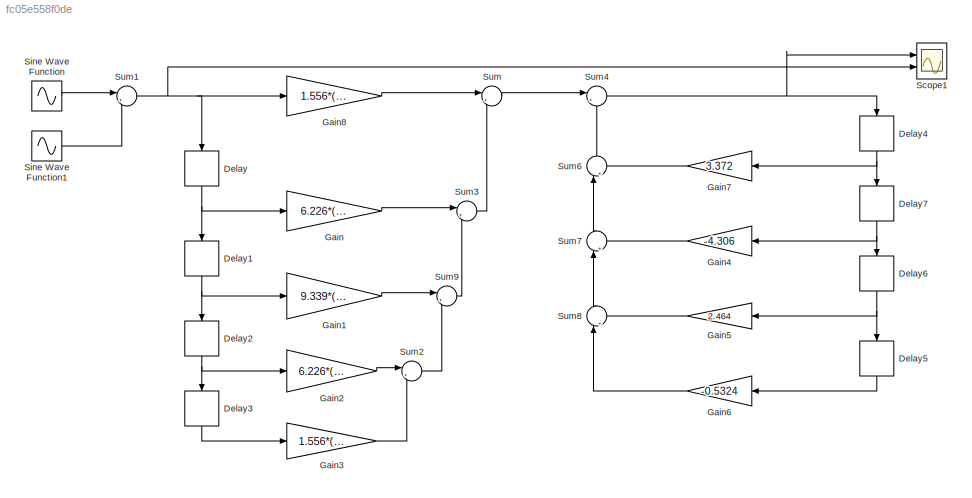
MODEL slx_fc05e558f0de
KIND model
CONFIG AbsTol = auto
CONFIG EnableMultiTasking = off
CONFIG FixedStep = auto
CONFIG MaxStep = auto
CONFIG MinStep = auto
CONFIG RelTol = 1e-3
CONFIG SampleTimeConstraint = Unconstrained
CONFIG SolverName = VariableStepAuto
CONFIG StartTime = 0.0
CONFIG StopTime = 10.0
BLOCK [Delay] Delay
  DelayLength = 1
  InitialCondition = 0
  InputPortMap = u0
  NameLocation = left
  Ports = [1, 1]
BLOCK [Delay] Delay1
  DelayLength = 1
  InitialCondition = 0
  InputPortMap = u0
  NameLocation = left
  Ports = [1, 1]
BLOCK [Delay] Delay2
  DelayLength = 1
  InitialCondition = 0
  InputPortMap = u0
  NameLocation = left
  Ports = [1, 1]
BLOCK [Delay] Delay3
  DelayLength = 1
  InitialCondition = 0
  InputPortMap = u0
  NameLocation = left
  Ports = [1, 1]
BLOCK [Delay] Delay4
  DelayLength = 1
  InitialCondition = 0
  InputPortMap = u0
  NameLocation = left
  Ports = [1, 1]
BLOCK [Delay] Delay5
  DelayLength = 1
  InitialCondition = 0
  InputPortMap = u0
  NameLocation = left
  Ports = [1, 1]
BLOCK [Delay] Delay6
  DelayLength = 1
  InitialCondition = 0
  InputPortMap = u0
  NameLocation = left
  Ports = [1, 1]
BLOCK [Delay] Delay7
  DelayLength = 1
  InitialCondition = 0
  InputPortMap = u0
  NameLocation = left
  Ports = [1, 1]
BLOCK [Gain] Gain
  Gain = 6.226*(10^-4)
BLOCK [Gain] Gain1
  Gain = 9.339*(10^-4)
BLOCK [Gain] Gain2
  Gain = 6.226*(10^-4)
BLOCK [Gain] Gain3
  Gain = 1.556*(10^-4)
BLOCK [Gain] Gain4
  Gain = -4.306
BLOCK [Gain] Gain5
  Gain = 2.464
BLOCK [Gain] Gain6
  Gain = -0.5324
BLOCK [Gain] Gain7
  Gain = 3.372
BLOCK [Gain] Gain8
  Gain = 1.556*(10^-4)
BLOCK [Scope] Scope1
  Floating = off
  NumInputPorts = 2
  Ports = [2]
  ScopeSpecificationString = Simulink.scopes.TimeScopeBlockCfg('CurrentConfiguration', extmgr.ConfigurationSet(extmgr.Configuration('Core','General UI',true),extmgr.Configuration('Core','Source UI',true),extmgr.Configuration('Sources','WiredSimulink',true,'DataLoggingVariableName','ScopeData1'),extmgr.Configuration('Visuals','Time Domain',true,'SerializedDisplays',{struct('MinYLimReal','-3.64454','MaxYLimReal','3.64454','YLab...<+1795ch>
BLOCK [Sin] Sine Wave Function
  Amplitude = 2
  Ports = [0, 1]
  SampleTime = 0.001
  Samples = 50
  SineType = Sample based
BLOCK [Sin] Sine Wave Function1
  Ports = [0, 1]
  SampleTime = 0.001
  Samples = 5
  SineType = Sample based
BLOCK [Sum] Sum
  Inputs = |++
  Ports = [2, 1]
BLOCK [Sum] Sum1
  Inputs = |++
  Ports = [2, 1]
BLOCK [Sum] Sum2
  Inputs = |++
  Ports = [2, 1]
BLOCK [Sum] Sum3
  Inputs = |++
  Ports = [2, 1]
BLOCK [Sum] Sum4
  Inputs = |++
  Ports = [2, 1]
BLOCK [Sum] Sum6
  Inputs = |++
  NameLocation = left
  Ports = [2, 1]
BLOCK [Sum] Sum7
  Inputs = |++
  NameLocation = left
  Ports = [2, 1]
BLOCK [Sum] Sum8
  Inputs = |++
  NameLocation = left
  Ports = [2, 1]
BLOCK [Sum] Sum9
  Inputs = |++
  Ports = [2, 1]
NET Delay1:1 -> Delay2:1, Gain1:1
NET Delay2:1 -> Delay3:1, Gain2:1
LINE Delay3:1 -> Gain3:1
NET Delay4:1 -> Delay7:1, Gain7:1
LINE Delay5:1 -> Gain6:1
NET Delay6:1 -> Delay5:1, Gain5:1
NET Delay7:1 -> Delay6:1, Gain4:1
NET Delay:1 -> Delay1:1, Gain:1
LINE Gain1:1 -> Sum9:1
LINE Gain2:1 -> Sum2:1
LINE Gain3:1 -> Sum2:2
LINE Gain4:1 -> Sum7:2
LINE Gain5:1 -> Sum8:2
LINE Gain6:1 -> Sum8:1
LINE Gain7:1 -> Sum6:2
LINE Gain8:1 -> Sum:1
LINE Gain:1 -> Sum3:1
LINE Sine Wave Function1:1 -> Sum1:2
LINE Sine Wave Function:1 -> Sum1:1
NET Sum1:1 -> Delay:1, Gain8:1, Scope1:2
LINE Sum2:1 -> Sum9:2
LINE Sum3:1 -> Sum:2
NET Sum4:1 -> Delay4:1, Scope1:1
LINE Sum6:1 -> Sum4:2
LINE Sum7:1 -> Sum6:1
LINE Sum8:1 -> Sum7:1
LINE Sum9:1 -> Sum3:2
LINE Sum:1 -> Sum4:1
note: NET lines group one-source signal fan-out (src -> all destinations, sorted); 1:1 wires keep LINE
